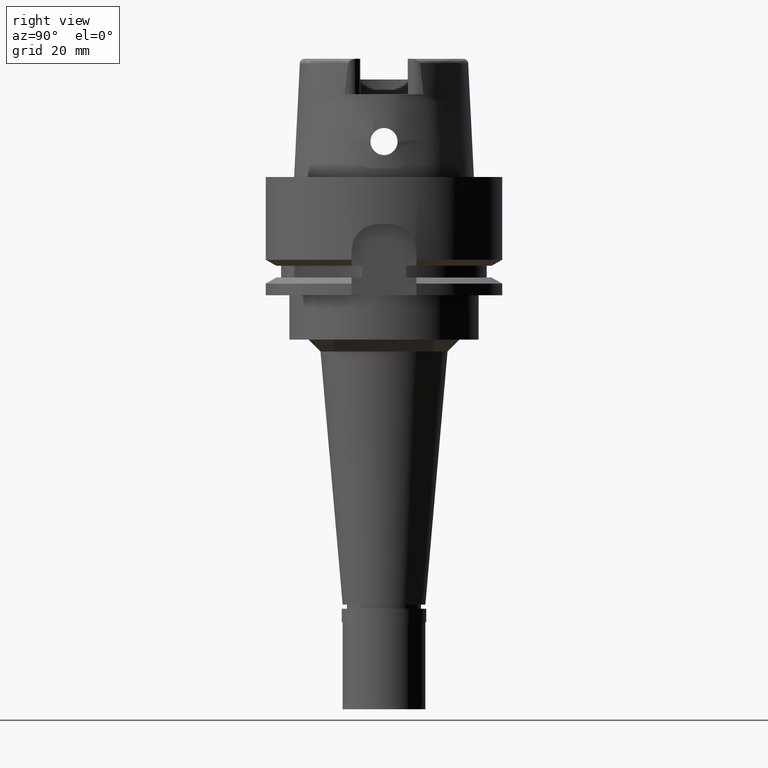
[diagram: clean part render]
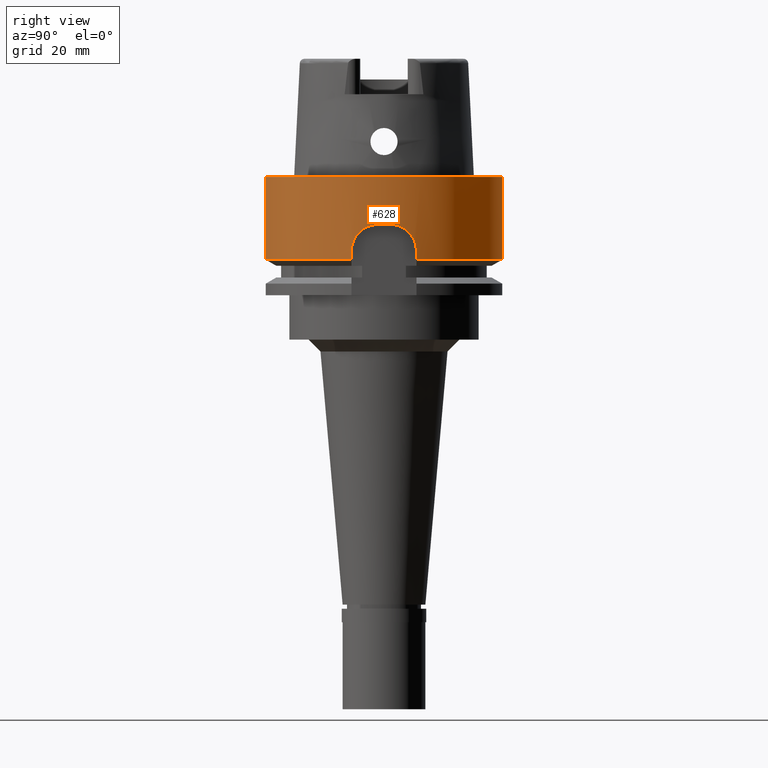
[diagram: same view with one face highlighted and labeled with its STEP entity id]
A machine part, right view. The second image highlights one B-rep face of the part: STEP entity #628.
In plain terms, the highlighted cylindrical surface (partial cylindrical patch) has radius 20 mm, axis along (0, 0, -1).
Its self-contained STEP definition (entity closure, byte-faithful):
#12 = CARTESIAN_POINT ( 'NONE',  ( 19.50142593041079309, 4.439542253001185657, -9.597059118686647849 ) ) ;
#22 = CARTESIAN_POINT ( 'NONE',  ( 19.45499076634540714, -4.644027424842466445, -9.843214421058414487 ) ) ;
#33 = CARTESIAN_POINT ( 'NONE',  ( 19.22888452303000051, 5.500000000000000000, -12.50000000000000000 ) ) ;
#132 = CARTESIAN_POINT ( 'NONE',  ( 19.97498435543999662, -1.000000000000000000, -8.000000000000000000 ) ) ;
#177 = CARTESIAN_POINT ( 'NONE',  ( 19.22888452303000051, -5.500000000000000000, -12.50000000000000000 ) ) ;
#204 = CARTESIAN_POINT ( 'NONE',  ( 19.86155045041909162, -2.348188506684616428, -8.206034764526664915 ) ) ;
#229 = CARTESIAN_POINT ( 'NONE',  ( 19.71332632634026538, -3.374393332556902880, -8.677022816201469979 ) ) ;
#262 = CARTESIAN_POINT ( 'NONE',  ( 19.78050042098269401, -2.957517143905240342, -8.445362508973675020 ) ) ;
#280 = CARTESIAN_POINT ( 'NONE',  ( 19.26930964573412197, 5.358382645635559882, -11.37007128465456063 ) ) ;
#306 = CARTESIAN_POINT ( 'NONE',  ( 19.59855040313421881, 3.987633760331224853, -9.131633675302092357 ) ) ;
#399 = CARTESIAN_POINT ( 'NONE',  ( 19.32817306022964488, -5.140566403629992287, -10.73759747576238333 ) ) ;
#411 = CARTESIAN_POINT ( 'NONE',  ( 19.94747734610916368, 1.549452080952150146, -7.999999999999998224 ) ) ;
#445 = DIRECTION ( 'NONE',  ( 0.0000000000000000000, 0.0000000000000000000, -1.000000000000000000 ) ) ;
#448 = CARTESIAN_POINT ( 'NONE',  ( 19.32093289486993015, 5.167700803224396289, -10.80286057461024818 ) ) ;
#452 = EDGE_CURVE ( 'NONE', #4016, #3264, #1868, .T. ) ;
#468 = CARTESIAN_POINT ( 'NONE',  ( 19.48919467988010368, 4.493392015006672402, -9.662221682703306058 ) ) ;
#506 = DIRECTION ( 'NONE',  ( -9.333403152611404127E-08, -3.263087042129141444E-07, -0.9999999999999423794 ) ) ;
#525 = DIRECTION ( 'NONE',  ( 0.0000000000000000000, -4.574547001069000145E-14, -1.000000000000000000 ) ) ;
#530 = CARTESIAN_POINT ( 'NONE',  ( 19.22888455218999937, 5.499999898039000357, -13.97927491227000019 ) ) ;
#559 = EDGE_CURVE ( 'NONE', #4120, #3251, #3173, .T. ) ;
#628 = ADVANCED_FACE ( 'NONE', ( #947 ), #2163, .T. ) ;
#648 = CARTESIAN_POINT ( 'NONE',  ( 19.82381985980676475, -2.648343888972155558, -8.312682143106810528 ) ) ;
#671 = CARTESIAN_POINT ( 'NONE',  ( 19.69351906555918674, -3.487892151945291008, -8.750279404322622412 ) ) ;
#702 = CARTESIAN_POINT ( 'NONE',  ( 19.56731345564521973, -4.137688151554991478, -9.274255796751891268 ) ) ;
#724 = CARTESIAN_POINT ( 'NONE',  ( 19.83222837323655696, -2.584740915320908439, -8.287963799897717365 ) ) ;
#777 = CARTESIAN_POINT ( 'NONE',  ( 19.26029251281641663, -5.395656231032819328, -11.35498875608436897 ) ) ;
#812 = CARTESIAN_POINT ( 'NONE',  ( 19.31465255680291548, 5.191230033017043333, -10.86163901157571132 ) ) ;
#816 = ORIENTED_EDGE ( 'NONE', *, *, #2898, .T. ) ;
#830 = CARTESIAN_POINT ( 'NONE',  ( 19.22888452303000406, -5.500000000000000000, -11.94434606109605035 ) ) ;
#843 = CARTESIAN_POINT ( 'NONE',  ( 19.76260105710704451, 3.074924970408575930, -8.506226763258309731 ) ) ;
#872 = CARTESIAN_POINT ( 'NONE',  ( 19.54198105163214549, 4.255882633057920472, -9.393536465124194379 ) ) ;
#947 = FACE_OUTER_BOUND ( 'NONE', #2912, .T. ) ;
#951 = EDGE_CURVE ( 'NONE', #4120, #4546, #2649, .T. ) ;
#1019 = CARTESIAN_POINT ( 'NONE',  ( 19.57621227062197278, -4.095335981263412251, -9.233376358919082705 ) ) ;
#1049 = CARTESIAN_POINT ( 'NONE',  ( 19.90134986795588645, -1.984987916365400729, -8.106685163467989952 ) ) ;
#1075 = B_SPLINE_CURVE_WITH_KNOTS ( 'NONE', 3,
 ( #33, #3182, #2537, #2934, #280, #4137, #1709, #4792, #812, #4925, #1928, #2850, #448, #3549, #2093, #1530, #4392, #468, #12, #3155, #3341, #872, #2904, #1661, #4901, #2875, #306, #2509, #4505, #1956, #3705, #843, #1122, #1225, #4480, #2449, #4082, #411, #1684 ),
 .UNSPECIFIED., .F., .F.,
 ( 4, 2, 2, 1, 1, 1, 1, 2, 2, 2, 2, 2, 1, 1, 2, 2, 2, 2, 2, 1, 2, 2, 4 ),
 ( 0.0000000000000000000, 0.1250000000000340838, 0.1875000000000510980, 0.2187500000000591471, 0.2343750000000629496, 0.2421875000000648648, 0.2460937500000658917, 0.2480468750000661415, 0.2500000000000663913, 0.3750000000000588418, 0.4375000000000555667, 0.4687500000000539013, 0.4843750000000532352, 0.4921875000000527356, 0.4960937500000524580, 0.5000000000000521805, 0.5625000000000466294, 0.6250000000000413003, 0.6875000000000358602, 0.7187500000000329736, 0.7343750000000314193, 0.7500000000000297540, 1.000000000000000000 ),
 .UNSPECIFIED. ) ;
#1122 = CARTESIAN_POINT ( 'NONE',  ( 19.77784088564865428, 2.975054965801407381, -8.455373366390976031 ) ) ;
#1225 = CARTESIAN_POINT ( 'NONE',  ( 19.79266068958504476, 2.872814982034651798, -8.408059249525365431 ) ) ;
#1277 = EDGE_CURVE ( 'NONE', #5093, #2039, #5137, .T. ) ;
#1358 = CARTESIAN_POINT ( 'NONE',  ( 0.0000000000000000000, 20.00000000000000000, 2.842170943039999687E-14 ) ) ;
#1408 = CARTESIAN_POINT ( 'NONE',  ( 0.0000000000000000000, 1.534482439332000152E-14, -8.000000000000000000 ) ) ;
#1432 = CARTESIAN_POINT ( 'NONE',  ( 19.67785115782706384, -3.575650277133175958, -8.807046663337153802 ) ) ;
#1465 = CARTESIAN_POINT ( 'NONE',  ( 0.0000000000000000000, 1.047199923064999921E-14, -13.97927405783999966 ) ) ;
#1486 = CARTESIAN_POINT ( 'NONE',  ( 19.70286275661976561, -3.434780831063848794, -8.715480651309851723 ) ) ;
#1530 = CARTESIAN_POINT ( 'NONE',  ( 19.43260815126836505, 4.734422932859701838, -9.984905843004082016 ) ) ;
#1540 = CARTESIAN_POINT ( 'NONE',  ( 19.84851072774025837, -2.457405216512003943, -8.241312961685034466 ) ) ;
#1549 = CARTESIAN_POINT ( 'NONE',  ( 19.22888452303000051, -5.499999999998999911, -13.97927405783999966 ) ) ;
#1571 = CARTESIAN_POINT ( 'NONE',  ( 19.35553694551920145, -5.037750810843081517, -10.51234513091338130 ) ) ;
#1617 = CARTESIAN_POINT ( 'NONE',  ( 19.39623340569042753, -4.881279891057448417, -10.21799917207682107 ) ) ;
#1661 = CARTESIAN_POINT ( 'NONE',  ( 19.55047447292295004, 4.216571673565385758, -9.352970484359204306 ) ) ;
#1684 = CARTESIAN_POINT ( 'NONE',  ( 19.97498435543999662, 1.000000000000000000, -8.000000000000000000 ) ) ;
#1705 = ORIENTED_EDGE ( 'NONE', *, *, #1873, .F. ) ;
#1707 = DIRECTION ( 'NONE',  ( 0.0000000000000000000, -1.000000000000000000, 0.0000000000000000000 ) ) ;
#1709 = CARTESIAN_POINT ( 'NONE',  ( 19.29601910180648616, 5.260598097691612018, -11.04834435499215672 ) ) ;
#1842 = DIRECTION ( 'NONE',  ( 0.0000000000000000000, 4.549132851063000272E-14, -1.000000000000000000 ) ) ;
#1856 = CARTESIAN_POINT ( 'NONE',  ( 19.97498435543999662, -1.000000000000000000, -8.000000000000000000 ) ) ;
#1868 = LINE ( 'NONE', #3451, #4630 ) ;
#1873 = EDGE_CURVE ( 'NONE', #3251, #2039, #1075, .T. ) ;
#1886 = CARTESIAN_POINT ( 'NONE',  ( 19.79891483244482941, -2.831338609773463411, -8.387472549101808283 ) ) ;
#1912 = CARTESIAN_POINT ( 'NONE',  ( 19.63064394798536227, -3.824976935539776246, -8.995569031635206159 ) ) ;
#1928 = CARTESIAN_POINT ( 'NONE',  ( 19.31936919709609413, 5.173565336898223066, -10.81733093384120004 ) ) ;
#1956 = CARTESIAN_POINT ( 'NONE',  ( 19.71012153021405666, 3.397762175248145944, -8.689193312188653096 ) ) ;
#1976 = EDGE_CURVE ( 'NONE', #3865, #4546, #3036, .T. ) ;
#1983 = B_SPLINE_CURVE_WITH_KNOTS ( 'NONE', 3,
 ( #1856, #3083, #3163, #1049, #2700, #204, #1540, #724, #648, #3481, #2357, #5154, #1886, #262, #2276, #3900, #4341, #229, #1486, #2676, #3113, #671, #3135, #4373, #3462, #5096, #1432, #2303, #1912, #3053, #4694, #3530, #1019, #702, #4771, #2731, #3964, #2657, #4520, #22, #1617, #3638, #1571, #2410, #5281, #1997, #399, #2382, #2497, #2784, #3300, #777, #830, #3694 ),
 .UNSPECIFIED., .F., .F.,
 ( 4, 2, 2, 1, 1, 1, 2, 2, 2, 2, 1, 1, 1, 1, 1, 2, 2, 2, 2, 2, 1, 1, 1, 2, 2, 2, 2, 2, 1, 1, 1, 2, 2, 4 ),
 ( 0.0000000000000000000, 0.1250000000007676082, 0.1875000000011512180, 0.2187500000013429258, 0.2343750000014388213, 0.2421875000014867552, 0.2460937500015106527, 0.2500000000015344948, 0.3125000000019128032, 0.3437500000021019297, 0.3593750000021964097, 0.3671875000022434277, 0.3710937500022669644, 0.3730468750022787883, 0.3740234375022846725, 0.3745117187522876145, 0.3750000000022905566, 0.4375000000020589086, 0.4687500000019431678, 0.4843750000018854918, 0.4921875000018565149, 0.4960937500018419155, 0.4980468750018347546, 0.4990234375018312019, 0.5000000000018276491, 0.6250000000013532508, 0.6875000000011157741, 0.7187500000009970913, 0.7343750000009381385, 0.7421875000009091616, 0.7460937500008941736, 0.7480468750008866241, 0.7500000000008790746, 1.000000000000000000 ),
 .UNSPECIFIED. ) ;
#1997 = CARTESIAN_POINT ( 'NONE',  ( 19.33346370638757605, -5.120735700020389913, -10.69140906426666149 ) ) ;
#2026 = CARTESIAN_POINT ( 'NONE',  ( 19.22888455218999937, 5.499999898039000357, -13.97927491227000019 ) ) ;
#2039 = VERTEX_POINT ( 'NONE', #2135 ) ;
#2093 = CARTESIAN_POINT ( 'NONE',  ( 19.37445306155656866, 4.968718896069827196, -10.35856978538358319 ) ) ;
#2133 = CARTESIAN_POINT ( 'NONE',  ( 0.0000000000000000000, 1.534482439332000152E-14, 25.30000000000000071 ) ) ;
#2135 = CARTESIAN_POINT ( 'NONE',  ( 19.97498435543999662, 1.000000000000000000, -8.000000000000000000 ) ) ;
#2141 = VERTEX_POINT ( 'NONE', #1549 ) ;
#2163 = CYLINDRICAL_SURFACE ( 'NONE', #5147, 20.00000000000000000 ) ;
#2187 = EDGE_CURVE ( 'NONE', #3264, #2141, #5280, .T. ) ;
#2206 = ORIENTED_EDGE ( 'NONE', *, *, #1277, .T. ) ;
#2276 = CARTESIAN_POINT ( 'NONE',  ( 19.74973462131659119, -3.154397350057839500, -8.548536765178809560 ) ) ;
#2303 = CARTESIAN_POINT ( 'NONE',  ( 19.64434316068087583, -3.753364495338114004, -8.939880110160917326 ) ) ;
#2357 = CARTESIAN_POINT ( 'NONE',  ( 19.81770557128489685, -2.693738785047627093, -8.330906002298355872 ) ) ;
#2380 = ORIENTED_EDGE ( 'NONE', *, *, #951, .T. ) ;
#2382 = CARTESIAN_POINT ( 'NONE',  ( 19.32561251651975809, -5.150173324782866047, -10.76041730667622964 ) ) ;
#2410 = CARTESIAN_POINT ( 'NONE',  ( 19.34832780427709409, -5.064939329166478821, -10.56870436415057135 ) ) ;
#2434 = EDGE_CURVE ( 'NONE', #5093, #3641, #1983, .T. ) ;
#2449 = CARTESIAN_POINT ( 'NONE',  ( 19.80702582156778035, 2.771501254343846199, -8.363168820822741267 ) ) ;
#2475 = CARTESIAN_POINT ( 'NONE',  ( 0.0000000000000000000, 20.00000000000000000, -13.97927405783999966 ) ) ;
#2497 = CARTESIAN_POINT ( 'NONE',  ( 19.32453330765173760, -5.154225458033647733, -10.77013783650155965 ) ) ;
#2509 = CARTESIAN_POINT ( 'NONE',  ( 19.64322700995361259, 3.760156515085644635, -8.942840572105312802 ) ) ;
#2522 = ORIENTED_EDGE ( 'NONE', *, *, #2434, .F. ) ;
#2537 = CARTESIAN_POINT ( 'NONE',  ( 19.23658454640221294, 5.474660854070628524, -11.94154979010096618 ) ) ;
#2649 = CIRCLE ( 'NONE', #3674, 20.00000000000000355 ) ;
#2657 = CARTESIAN_POINT ( 'NONE',  ( 19.55857315053927081, -4.178829359051341008, -9.314870145131161294 ) ) ;
#2676 = CARTESIAN_POINT ( 'NONE',  ( 19.69754499802002101, -3.465100448375051378, -8.735233290155592911 ) ) ;
#2697 = DIRECTION ( 'NONE',  ( 0.0000000000000000000, 0.0000000000000000000, 1.000000000000000000 ) ) ;
#2700 = CARTESIAN_POINT ( 'NONE',  ( 19.88640778753476113, -2.130037156480475424, -8.141558214566380514 ) ) ;
#2731 = CARTESIAN_POINT ( 'NONE',  ( 19.56078668878244287, -4.168450488658988817, -9.304543760729412583 ) ) ;
#2745 = VECTOR ( 'NONE', #3677, 1000.000000000000227 ) ;
#2784 = CARTESIAN_POINT ( 'NONE',  ( 19.32381787218588443, -5.156912517075564750, -10.77660492449965446 ) ) ;
#2819 = AXIS2_PLACEMENT_3D ( 'NONE', #1408, #2697, #3501 ) ;
#2831 = CARTESIAN_POINT ( 'NONE',  ( 0.0000000000000000000, 20.00000000000000000, 2.842170943039999687E-14 ) ) ;
#2850 = CARTESIAN_POINT ( 'NONE',  ( 19.32032418046355460, 5.169984398367490463, -10.80847615300942799 ) ) ;
#2875 = CARTESIAN_POINT ( 'NONE',  ( 19.57622255506750619, 4.096717591866502417, -9.231638431955051516 ) ) ;
#2898 = EDGE_CURVE ( 'NONE', #3865, #4016, #5207, .T. ) ;
#2904 = CARTESIAN_POINT ( 'NONE',  ( 19.54706758414820911, 4.232361528600473655, -9.369190671420376759 ) ) ;
#2912 = EDGE_LOOP ( 'NONE', ( #2206, #1705, #3809, #2380, #4401, #816, #3740, #3454, #3378, #2522 ) ) ;
#2934 = CARTESIAN_POINT ( 'NONE',  ( 19.25968461651885733, 5.392910415922023581, -11.51336319921874107 ) ) ;
#2987 = CARTESIAN_POINT ( 'NONE',  ( 0.0000000000000000000, -20.00000000000000000, 4.263256414560999963E-14 ) ) ;
#3036 = LINE ( 'NONE', #1358, #4852 ) ;
#3053 = CARTESIAN_POINT ( 'NONE',  ( 19.60630030847191918, -3.947932664678250436, -9.099621230051795351 ) ) ;
#3083 = CARTESIAN_POINT ( 'NONE',  ( 19.96139497115763106, -1.271447738397927241, -8.000000000000001776 ) ) ;
#3113 = CARTESIAN_POINT ( 'NONE',  ( 19.69486462528527326, -3.480290084630958347, -8.745241877277990739 ) ) ;
#3135 = CARTESIAN_POINT ( 'NONE',  ( 19.69294124567114324, -3.491151711785715150, -8.752445483754845768 ) ) ;
#3155 = CARTESIAN_POINT ( 'NONE',  ( 19.52053442688044527, 4.353765221726916934, -9.499310411725295111 ) ) ;
#3163 = CARTESIAN_POINT ( 'NONE',  ( 19.94128767625129939, -1.553696544869202167, -8.024613320693674723 ) ) ;
#3173 = LINE ( 'NONE', #2026, #2745 ) ;
#3182 = CARTESIAN_POINT ( 'NONE',  ( 19.22888452303000406, 5.500000000000000000, -12.22465747461483154 ) ) ;
#3202 = CARTESIAN_POINT ( 'NONE',  ( 0.0000000000000000000, -20.00000000000000000, -13.97927405783999966 ) ) ;
#3226 = AXIS2_PLACEMENT_3D ( 'NONE', #5032, #4989, #4207 ) ;
#3251 = VERTEX_POINT ( 'NONE', #3603 ) ;
#3264 = VERTEX_POINT ( 'NONE', #3202 ) ;
#3300 = CARTESIAN_POINT ( 'NONE',  ( 19.32359924222965475, -5.157733724683024157, -10.77858382672746629 ) ) ;
#3341 = CARTESIAN_POINT ( 'NONE',  ( 19.53027908028366610, 4.309626506835613213, -9.450435772373703358 ) ) ;
#3378 = ORIENTED_EDGE ( 'NONE', *, *, #3529, .F. ) ;
#3451 = CARTESIAN_POINT ( 'NONE',  ( 0.0000000000000000000, -20.00000000000000000, 2.842170943039999687E-14 ) ) ;
#3454 = ORIENTED_EDGE ( 'NONE', *, *, #2187, .T. ) ;
#3462 = CARTESIAN_POINT ( 'NONE',  ( 19.69218632689283766, -3.495406580205628000, -8.755277578805898742 ) ) ;
#3481 = CARTESIAN_POINT ( 'NONE',  ( 19.82015892487014952, -2.675583637705184703, -8.323576253934335867 ) ) ;
#3485 = DIRECTION ( 'NONE',  ( 0.0000000000000000000, 0.0000000000000000000, 1.000000000000000000 ) ) ;
#3501 = DIRECTION ( 'NONE',  ( 0.9987492177719088371, -0.04999999999999998890, 0.0000000000000000000 ) ) ;
#3529 = EDGE_CURVE ( 'NONE', #3641, #2141, #3642, .T. ) ;
#3530 = CARTESIAN_POINT ( 'NONE',  ( 19.58348406189727342, -4.060166916482955024, -9.200554451303394998 ) ) ;
#3549 = CARTESIAN_POINT ( 'NONE',  ( 19.34380695560060204, 5.081862356125608216, -10.59253311243460871 ) ) ;
#3603 = CARTESIAN_POINT ( 'NONE',  ( 19.22888452303000051, 5.500000000000000000, -12.50000000000000000 ) ) ;
#3638 = CARTESIAN_POINT ( 'NONE',  ( 19.37871462056574501, -4.949342529146529834, -10.33909566529534807 ) ) ;
#3641 = VERTEX_POINT ( 'NONE', #177 ) ;
#3642 = LINE ( 'NONE', #3764, #4182 ) ;
#3674 = AXIS2_PLACEMENT_3D ( 'NONE', #4346, #3485, #5130 ) ;
#3677 = DIRECTION ( 'NONE',  ( -1.971419916389989354E-08, 6.892603759641960827E-08, 0.9999999999999973355 ) ) ;
#3694 = CARTESIAN_POINT ( 'NONE',  ( 19.22888452303000051, -5.500000000000000000, -12.50000000000000000 ) ) ;
#3705 = CARTESIAN_POINT ( 'NONE',  ( 19.73156136721682685, 3.271312546351743400, -8.612418166244975026 ) ) ;
#3740 = ORIENTED_EDGE ( 'NONE', *, *, #452, .T. ) ;
#3764 = CARTESIAN_POINT ( 'NONE',  ( 19.22888452303000051, -5.500000000000000000, -12.50000000000000000 ) ) ;
#3809 = ORIENTED_EDGE ( 'NONE', *, *, #559, .F. ) ;
#3865 = VERTEX_POINT ( 'NONE', #2831 ) ;
#3900 = CARTESIAN_POINT ( 'NONE',  ( 19.73895532434907096, -3.221284057185790139, -8.585652795281339067 ) ) ;
#3964 = CARTESIAN_POINT ( 'NONE',  ( 19.55946601777517202, -4.174647431031260680, -9.310700270463232897 ) ) ;
#4016 = VERTEX_POINT ( 'NONE', #2987 ) ;
#4082 = CARTESIAN_POINT ( 'NONE',  ( 19.89318047508343668, 2.146238498702259356, -8.101944124074503151 ) ) ;
#4120 = VERTEX_POINT ( 'NONE', #530 ) ;
#4137 = CARTESIAN_POINT ( 'NONE',  ( 19.28663469832160260, 5.295105913680359322, -11.15552064457915193 ) ) ;
#4182 = VECTOR ( 'NONE', #506, 1000.000000000000114 ) ;
#4207 = DIRECTION ( 'NONE',  ( 0.0000000000000000000, 1.000000000000000000, 0.0000000000000000000 ) ) ;
#4341 = CARTESIAN_POINT ( 'NONE',  ( 19.72200033327956348, -3.323108481517452528, -8.645817699102593679 ) ) ;
#4346 = CARTESIAN_POINT ( 'NONE',  ( 0.0000000000000000000, 1.047199923064999921E-14, -13.97927405783999966 ) ) ;
#4349 = DIRECTION ( 'NONE',  ( 0.0000000000000000000, -1.000000000000000000, 0.0000000000000000000 ) ) ;
#4373 = CARTESIAN_POINT ( 'NONE',  ( 19.69255577653821376, -3.493325089401310812, -8.753891125190795819 ) ) ;
#4392 = CARTESIAN_POINT ( 'NONE',  ( 19.45402416963527159, 4.645537952998953557, -9.856678750554374702 ) ) ;
#4401 = ORIENTED_EDGE ( 'NONE', *, *, #1976, .F. ) ;
#4480 = CARTESIAN_POINT ( 'NONE',  ( 19.80244722007480718, 2.804145672554516633, -8.377322053018065873 ) ) ;
#4505 = CARTESIAN_POINT ( 'NONE',  ( 19.66574843538987238, 3.640817669631752462, -8.853413500727132401 ) ) ;
#4520 = CARTESIAN_POINT ( 'NONE',  ( 19.50243034715665758, -4.441498029992551722, -9.577354834705248621 ) ) ;
#4546 = VERTEX_POINT ( 'NONE', #2475 ) ;
#4630 = VECTOR ( 'NONE', #1842, 1000.000000000000000 ) ;
#4694 = CARTESIAN_POINT ( 'NONE',  ( 19.59755329188907780, -3.991492604781846421, -9.137735593719900962 ) ) ;
#4768 = AXIS2_PLACEMENT_3D ( 'NONE', #1465, #4814, #4349 ) ;
#4771 = CARTESIAN_POINT ( 'NONE',  ( 19.56276028353460106, -4.159176365620652405, -9.295357038020441109 ) ) ;
#4792 = CARTESIAN_POINT ( 'NONE',  ( 19.30823085762336788, 5.215214264567944014, -10.92377104176843794 ) ) ;
#4814 = DIRECTION ( 'NONE',  ( 0.0000000000000000000, 0.0000000000000000000, 1.000000000000000000 ) ) ;
#4852 = VECTOR ( 'NONE', #525, 1000.000000000000000 ) ;
#4901 = CARTESIAN_POINT ( 'NONE',  ( 19.55251032529852395, 4.207111571720359322, -9.343337093211101063 ) ) ;
#4925 = CARTESIAN_POINT ( 'NONE',  ( 19.31794236171047885, 5.178913504019664771, -10.83061647129629002 ) ) ;
#4989 = DIRECTION ( 'NONE',  ( 0.0000000000000000000, 0.0000000000000000000, -1.000000000000000000 ) ) ;
#5032 = CARTESIAN_POINT ( 'NONE',  ( 0.0000000000000000000, 1.534482439332000152E-14, 4.263256414560999963E-14 ) ) ;
#5093 = VERTEX_POINT ( 'NONE', #132 ) ;
#5096 = CARTESIAN_POINT ( 'NONE',  ( 19.69007030133740699, -3.507325166749108547, -8.763220306242422097 ) ) ;
#5130 = DIRECTION ( 'NONE',  ( 0.9614442261514726251, 0.2749999999999924727, 0.0000000000000000000 ) ) ;
#5137 = CIRCLE ( 'NONE', #2819, 20.00000000000000355 ) ;
#5147 = AXIS2_PLACEMENT_3D ( 'NONE', #2133, #445, #1707 ) ;
#5154 = CARTESIAN_POINT ( 'NONE',  ( 19.81625301537170358, -2.704420886939813862, -8.335265361554084151 ) ) ;
#5207 = CIRCLE ( 'NONE', #3226, 20.00000000000000000 ) ;
#5280 = CIRCLE ( 'NONE', #4768, 20.00000000000000000 ) ;
#5281 = CARTESIAN_POINT ( 'NONE',  ( 19.33828921807407042, -5.102649160127226580, -10.65089791665759122 ) ) ;